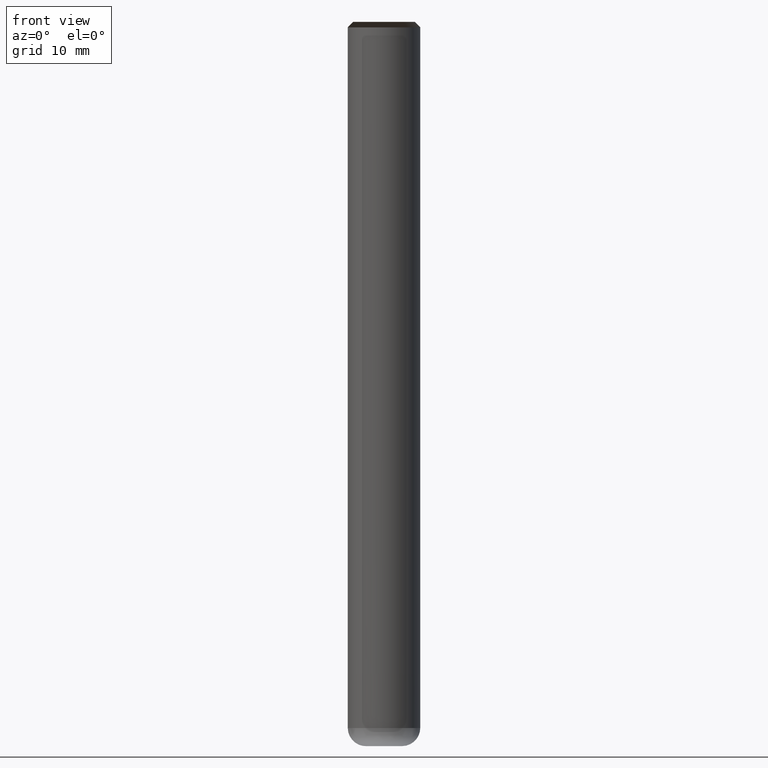
[diagram: clean part render]
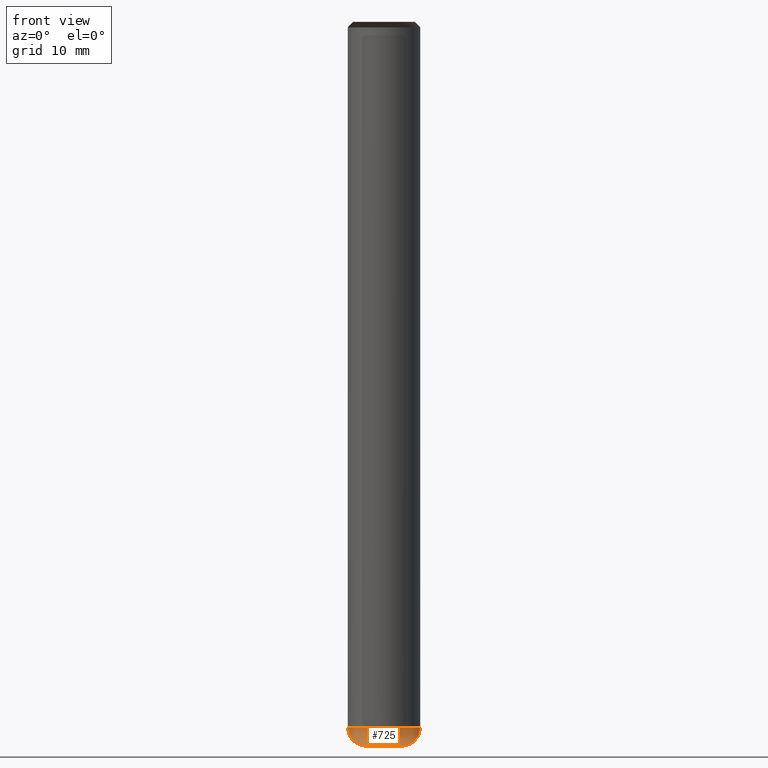
[diagram: same view with one face highlighted and labeled with its STEP entity id]
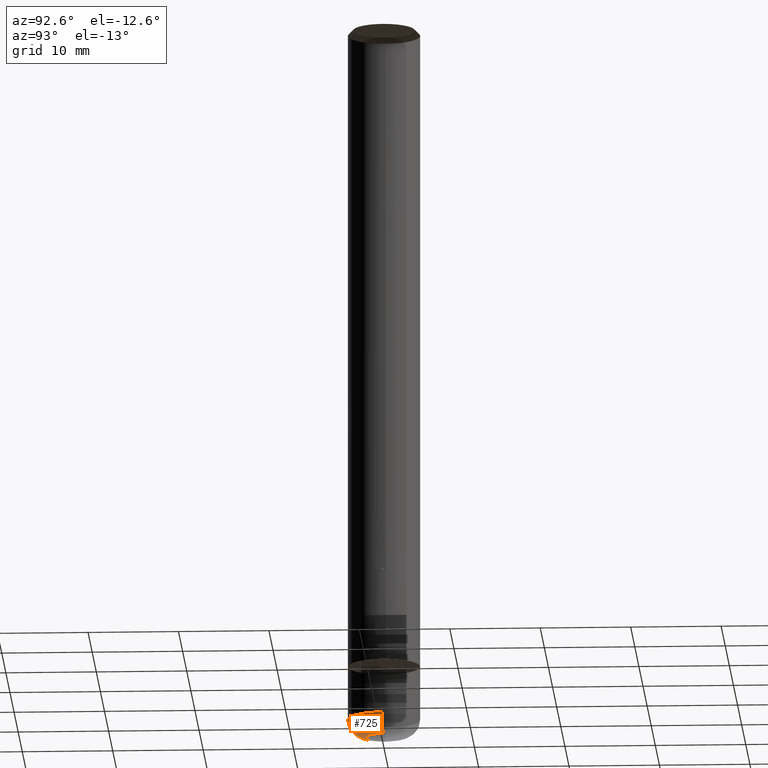
[diagram: same view with one face highlighted and labeled with its STEP entity id]
A machine part, front view. The second image highlights one B-rep face of the part: STEP entity #725.
A second angle (auxiliary view) of the same face is appended — the face is thin or edge-on in the first view.
In plain terms, the highlighted face is a freeform B-spline surface patch.
Its self-contained STEP definition (entity closure, byte-faithful):
#537=CARTESIAN_POINT('',(2.0,0.0,-20.0));
#541=CARTESIAN_POINT('',(-2.0,0.0,-20.0));
#542=CARTESIAN_POINT('',(2.828427124746,0.0,-20.0));
#546=CARTESIAN_POINT('',(-2.828427124746,0.0,-20.0));
#547=CARTESIAN_POINT('',(3.414213562373,0.0,-19.414213562373));
#551=CARTESIAN_POINT('',(-3.414213562373,0.0,-19.414213562373));
#552=CARTESIAN_POINT('',(4.0,0.0,-18.828427124746));
#556=CARTESIAN_POINT('',(-4.0,0.0,-18.828427124746));
#557=CARTESIAN_POINT('',(4.0,0.0,-18.0));
#561=CARTESIAN_POINT('',(-4.0,0.0,-18.0));
#568=CARTESIAN_POINT('',(-2.0,-2.0,-20.0));
#569=CARTESIAN_POINT('',(0.0,-2.0,-20.0));
#570=CARTESIAN_POINT('',(2.0,-2.0,-20.0));
#571=CARTESIAN_POINT('',(-2.828427124746,-2.828427124746,-20.0));
#572=CARTESIAN_POINT('',(0.0,-2.828427124746,-20.0));
#573=CARTESIAN_POINT('',(2.828427124746,-2.828427124746,-20.0));
#574=CARTESIAN_POINT('',(-3.414213562373,-3.414213562373,-19.414213562373));
#575=CARTESIAN_POINT('',(0.0,-3.414213562373,-19.414213562373));
#576=CARTESIAN_POINT('',(3.414213562373,-3.414213562373,-19.414213562373));
#577=CARTESIAN_POINT('',(-4.0,-4.0,-18.828427124746));
#578=CARTESIAN_POINT('',(0.0,-4.0,-18.828427124746));
#579=CARTESIAN_POINT('',(4.0,-4.0,-18.828427124746));
#580=CARTESIAN_POINT('',(-4.0,-4.0,-18.0));
#581=CARTESIAN_POINT('',(0.0,-4.0,-18.0));
#582=CARTESIAN_POINT('',(4.0,-4.0,-18.0));
#706=(
BOUNDED_SURFACE()
B_SPLINE_SURFACE(2,2,(
(#541,#568,#569,#570,#537),
(#546,#571,#572,#573,#542),
(#551,#574,#575,#576,#547),
(#556,#577,#578,#579,#552),
(#561,#580,#581,#582,#557)
), .UNSPECIFIED.,.F.,.F.,.F.)
B_SPLINE_SURFACE_WITH_KNOTS((3,2,3),(3,2,3),(
0.0,0.5,1.0),(
0.0,0.5,1.0), .UNSPECIFIED.)
GEOMETRIC_REPRESENTATION_ITEM()
RATIONAL_B_SPLINE_SURFACE(((1.0,0.707106781187,1.0,0.707106781187,1.0),
(0.923879532511,0.653281482438,0.923879532511,0.653281482438,0.923879532511),
(1.0,0.707106781187,1.0,0.707106781187,1.0),
(0.923879532511,0.653281482438,0.923879532511,0.653281482438,0.923879532511),
(1.0,0.707106781187,1.0,0.707106781187,1.0)
))
REPRESENTATION_ITEM('')
SURFACE()
);
#707=(
BOUNDED_CURVE()
B_SPLINE_CURVE(2,(#561,#556,#551,#546,#541),.UNSPECIFIED.,.F.,.F.)
B_SPLINE_CURVE_WITH_KNOTS((3,2,3),
(0.0,0.5,1.0),.UNSPECIFIED.)
CURVE()
GEOMETRIC_REPRESENTATION_ITEM()
RATIONAL_B_SPLINE_CURVE((1.0,0.923879532511,1.0,0.923879532511,1.0))
REPRESENTATION_ITEM('')
);
#708=(
BOUNDED_CURVE()
B_SPLINE_CURVE(2,(#541,#568,#569,#570,#537),.UNSPECIFIED.,.F.,.F.)
B_SPLINE_CURVE_WITH_KNOTS((3,2,3),
(0.0,0.5,1.0),.UNSPECIFIED.)
CURVE()
GEOMETRIC_REPRESENTATION_ITEM()
RATIONAL_B_SPLINE_CURVE((1.0,0.707106781187,1.0,0.707106781187,1.0))
REPRESENTATION_ITEM('')
);
#709=(
BOUNDED_CURVE()
B_SPLINE_CURVE(2,(#537,#542,#547,#552,#557),.UNSPECIFIED.,.F.,.F.)
B_SPLINE_CURVE_WITH_KNOTS((3,2,3),
(0.0,0.5,1.0),.UNSPECIFIED.)
CURVE()
GEOMETRIC_REPRESENTATION_ITEM()
RATIONAL_B_SPLINE_CURVE((1.0,0.923879532511,1.0,0.923879532511,1.0))
REPRESENTATION_ITEM('')
);
#710=(
BOUNDED_CURVE()
B_SPLINE_CURVE(2,(#557,#582,#581,#580,#561),.UNSPECIFIED.,.F.,.F.)
B_SPLINE_CURVE_WITH_KNOTS((3,2,3),
(0.0,0.5,1.0),.UNSPECIFIED.)
CURVE()
GEOMETRIC_REPRESENTATION_ITEM()
RATIONAL_B_SPLINE_CURVE((1.0,0.707106781187,1.0,0.707106781187,1.0))
REPRESENTATION_ITEM('')
);
#711=VERTEX_POINT('',#537);
#712=VERTEX_POINT('',#541);
#713=VERTEX_POINT('',#557);
#714=VERTEX_POINT('',#561);
#715=EDGE_CURVE('',#714,#712,#707,.T.);
#716=EDGE_CURVE('',#712,#711,#708,.T.);
#717=EDGE_CURVE('',#711,#713,#709,.T.);
#718=EDGE_CURVE('',#713,#714,#710,.T.);
#719=ORIENTED_EDGE('',*,*,#715,.T.);
#720=ORIENTED_EDGE('',*,*,#716,.T.);
#721=ORIENTED_EDGE('',*,*,#717,.T.);
#722=ORIENTED_EDGE('',*,*,#718,.T.);
#723=EDGE_LOOP('',(#719,#720,#721,#722));
#724=FACE_OUTER_BOUND('',#723,.T.);
#725=ADVANCED_FACE('',(#724),#706,.T.);